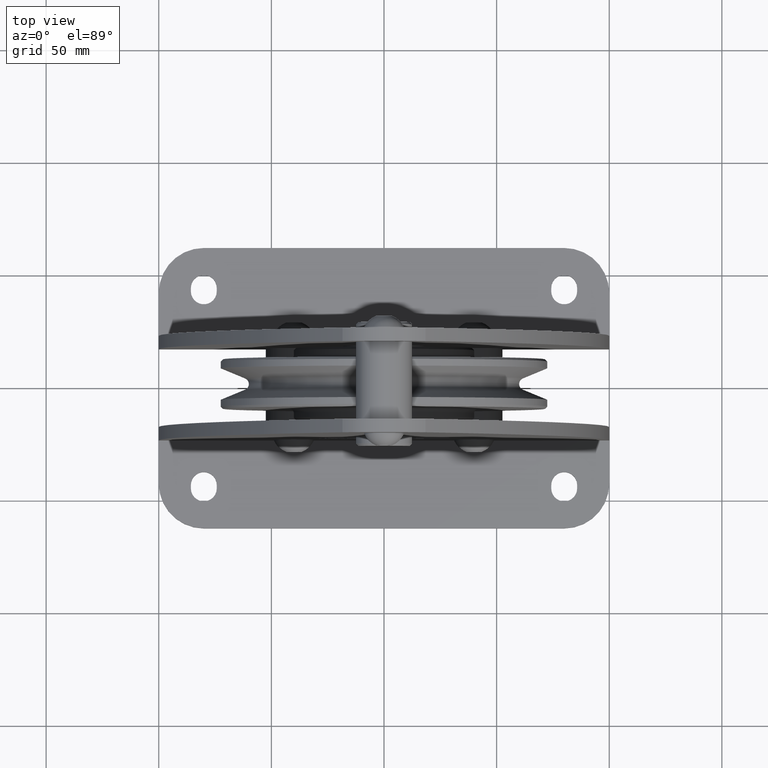
[diagram: clean part render]
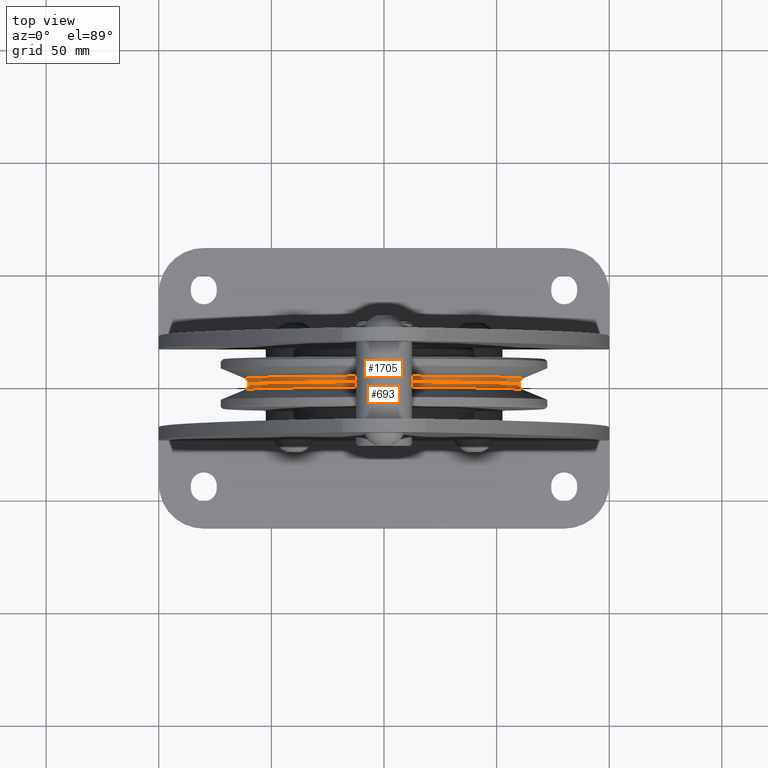
[diagram: same view with one multi-face feature highlighted, each face labeled with its STEP entity id]
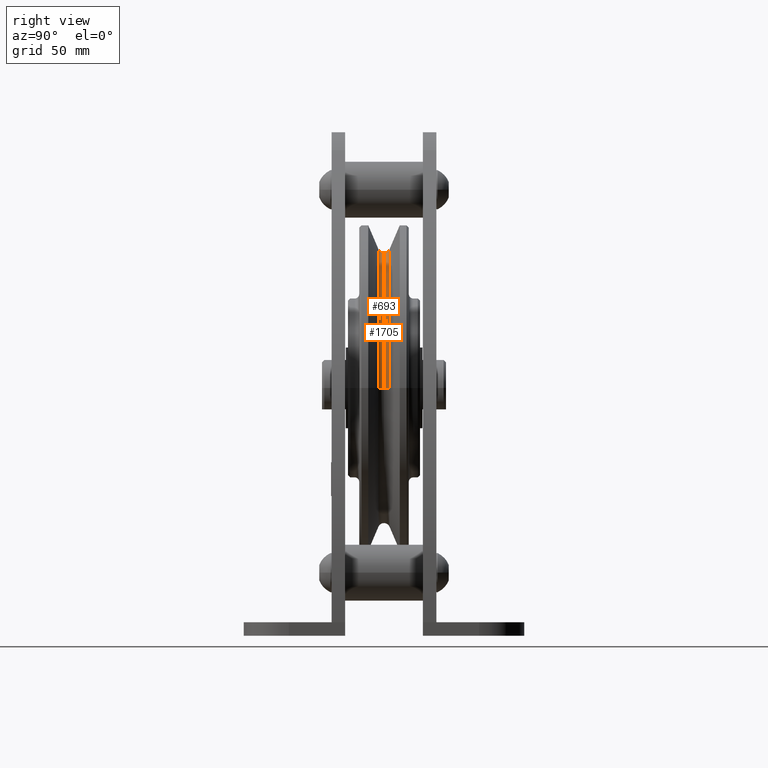
[diagram: same view with one multi-face feature highlighted, each face labeled with its STEP entity id]
A machine part, top view. The highlighted faces form ONE feature: a constant-radius fillet chain: 2 tangent blend faces with common blend radius 2.7 mm. The faces share edges in the B-rep.
A second angle (right view) of the same feature is appended — it is thin or edge-on in the first view.
Their STEP definitions:
[1] entity #693 (Torus):
#693=ADVANCED_FACE('',(#2047),#2048,.F.);
#2047=FACE_OUTER_BOUND('',#4153,.T.);
#2048=TOROIDAL_SURFACE('',#4154,62.7000002267,2.7000002267);
#4153=EDGE_LOOP('',(#6253,#6254,#6255,#6256));
#4154=AXIS2_PLACEMENT_3D('',#6257,#6258,#6259);
#6253=ORIENTED_EDGE('',*,*,#12560,.F.);
#6254=ORIENTED_EDGE('',*,*,#12561,.T.);
#6255=ORIENTED_EDGE('',*,*,#12562,.F.);
#6256=ORIENTED_EDGE('',*,*,#12563,.T.);
#6257=CARTESIAN_POINT('',(0.0,0.0,0.0));
#6258=DIRECTION('',(0.0,-1.0,0.0));
#6259=DIRECTION('',(1.0,0.0,0.0));
#12560=EDGE_CURVE('',#15046,#15047,#15048,.T.);
#12561=EDGE_CURVE('',#15046,#15049,#15050,.T.);
#12562=EDGE_CURVE('',#15051,#15049,#15052,.T.);
#12563=EDGE_CURVE('',#15051,#15047,#15053,.T.);
#15046=VERTEX_POINT('',#18728);
#15047=VERTEX_POINT('',#18729);
#15048=CIRCLE('',#18730,60.0);
#15049=VERTEX_POINT('',#18731);
#15050=CIRCLE('',#18732,2.7000002267);
#15051=VERTEX_POINT('',#18733);
#15052=CIRCLE('',#18734,61.666755);
#15053=CIRCLE('',#18735,2.7000002267);
#18728=CARTESIAN_POINT('',(-60.0,-3.30654663532528E-016,7.0613267444763E-015));
#18729=CARTESIAN_POINT('',(60.0,-3.30654663532528E-016,-7.06132674447629E-015));
#18730=AXIS2_PLACEMENT_3D('',#26634,#26635,#26636);
#18731=CARTESIAN_POINT('',(-61.666755,-2.494475,7.5519994124554E-015));
#18732=AXIS2_PLACEMENT_3D('',#26637,#26638,#26639);
#18733=CARTESIAN_POINT('',(61.666755,-2.494475,0.0));
#18734=AXIS2_PLACEMENT_3D('',#26640,#26641,#26642);
#18735=AXIS2_PLACEMENT_3D('',#26643,#26644,#26645);
#26634=CARTESIAN_POINT('',(0.0,-3.30654663532528E-016,0.0));
#26635=DIRECTION('',(-0.0,1.0,0.0));
#26636=DIRECTION('',(0.0,0.0,1.0));
#26637=CARTESIAN_POINT('',(-62.7000002267,0.0,7.67853545841665E-015));
#26638=DIRECTION('',(-1.22464679914735E-016,0.0,-1.0));
#26639=DIRECTION('',(-1.0,0.0,1.22464679914735E-016));
#26640=CARTESIAN_POINT('',(0.0,-2.494475,0.0));
#26641=DIRECTION('',(0.0,-1.0,0.0));
#26642=DIRECTION('',(1.0,0.0,0.0));
#26643=CARTESIAN_POINT('',(62.7000002267,0.0,-7.67853545841665E-015));
#26644=DIRECTION('',(-1.22464679914735E-016,-0.0,-1.0));
#26645=DIRECTION('',(1.0,0.0,-1.22464679914735E-016));
[2] entity #1705 (Torus):
#1705=ADVANCED_FACE('',(#3618),#3619,.F.);
#3618=FACE_OUTER_BOUND('',#5724,.T.);
#3619=TOROIDAL_SURFACE('',#5725,62.7000002267,2.7000002267);
#5724=EDGE_LOOP('',(#11166,#11167,#11168,#11169));
#5725=AXIS2_PLACEMENT_3D('',#11170,#11171,#11172);
#11166=ORIENTED_EDGE('',*,*,#12560,.T.);
#11167=ORIENTED_EDGE('',*,*,#12720,.T.);
#11168=ORIENTED_EDGE('',*,*,#12725,.T.);
#11169=ORIENTED_EDGE('',*,*,#12718,.T.);
#11170=CARTESIAN_POINT('',(0.0,0.0,0.0));
#11171=DIRECTION('',(0.0,-1.0,0.0));
#11172=DIRECTION('',(1.0,0.0,0.0));
#12560=EDGE_CURVE('',#15046,#15047,#15048,.T.);
#12718=EDGE_CURVE('',#15328,#15046,#15329,.T.);
#12720=EDGE_CURVE('',#15047,#15330,#15332,.T.);
#12725=EDGE_CURVE('',#15330,#15328,#15339,.T.);
#15046=VERTEX_POINT('',#18728);
#15047=VERTEX_POINT('',#18729);
#15048=CIRCLE('',#18730,60.0);
#15328=VERTEX_POINT('',#19782);
#15329=CIRCLE('',#19783,2.7000002267);
#15330=VERTEX_POINT('',#19784);
#15332=CIRCLE('',#19786,2.7000002267);
#15339=CIRCLE('',#19795,61.666755);
#18728=CARTESIAN_POINT('',(-60.0,-3.30654663532528E-016,7.0613267444763E-015));
#18729=CARTESIAN_POINT('',(60.0,-3.30654663532528E-016,-7.06132674447629E-015));
#18730=AXIS2_PLACEMENT_3D('',#26634,#26635,#26636);
#19782=CARTESIAN_POINT('',(-61.666755,2.494475,7.5519994124554E-015));
#19783=AXIS2_PLACEMENT_3D('',#26846,#26847,#26848);
#19784=CARTESIAN_POINT('',(61.666755,2.494475,0.0));
#19786=AXIS2_PLACEMENT_3D('',#26852,#26853,#26854);
#19795=AXIS2_PLACEMENT_3D('',#26860,#26861,#26862);
#26634=CARTESIAN_POINT('',(0.0,-3.30654663532528E-016,0.0));
#26635=DIRECTION('',(-0.0,1.0,0.0));
#26636=DIRECTION('',(0.0,0.0,1.0));
#26846=CARTESIAN_POINT('',(-62.7000002267,0.0,7.67853545841665E-015));
#26847=DIRECTION('',(-1.22464679914735E-016,0.0,-1.0));
#26848=DIRECTION('',(-1.0,0.0,1.22464679914735E-016));
#26852=CARTESIAN_POINT('',(62.7000002267,0.0,-7.67853545841665E-015));
#26853=DIRECTION('',(-1.22464679914735E-016,-0.0,-1.0));
#26854=DIRECTION('',(1.0,0.0,-1.22464679914735E-016));
#26860=CARTESIAN_POINT('',(0.0,2.494475,0.0));
#26861=DIRECTION('',(0.0,-1.0,0.0));
#26862=DIRECTION('',(1.0,0.0,0.0));